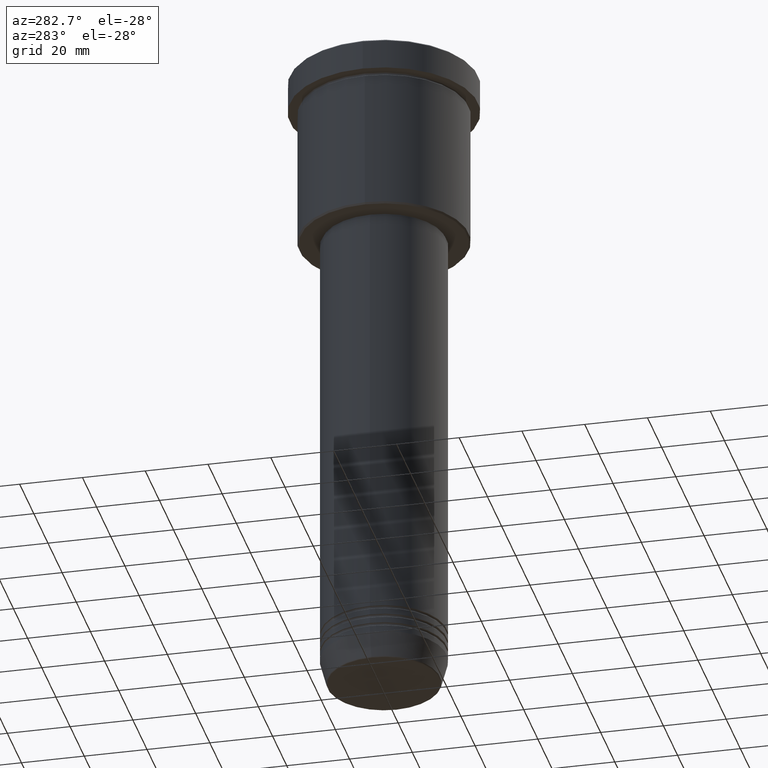
[diagram: clean part render]
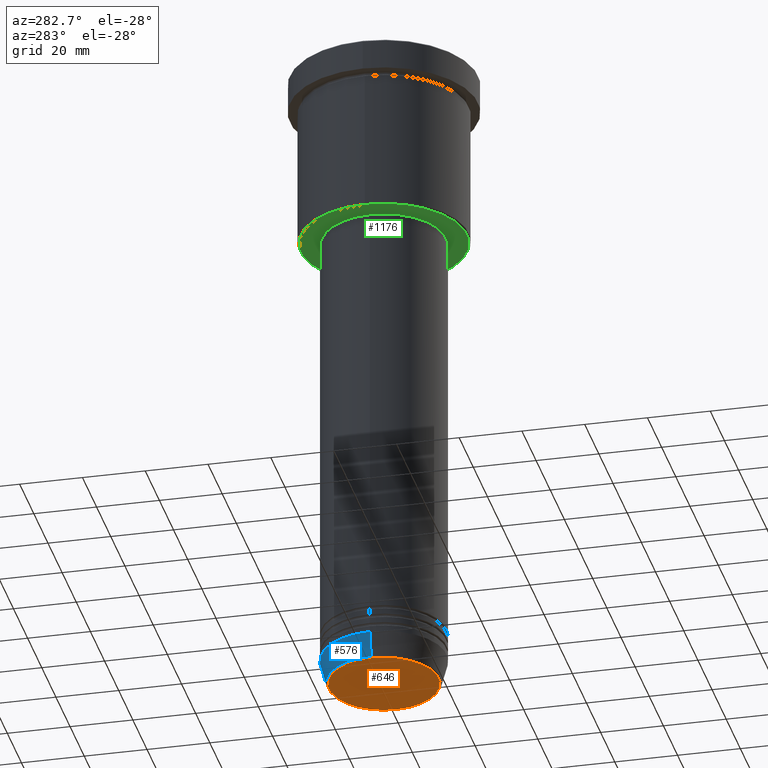
[diagram: same view with three faces highlighted in distinct colors, each labeled with its STEP entity id]
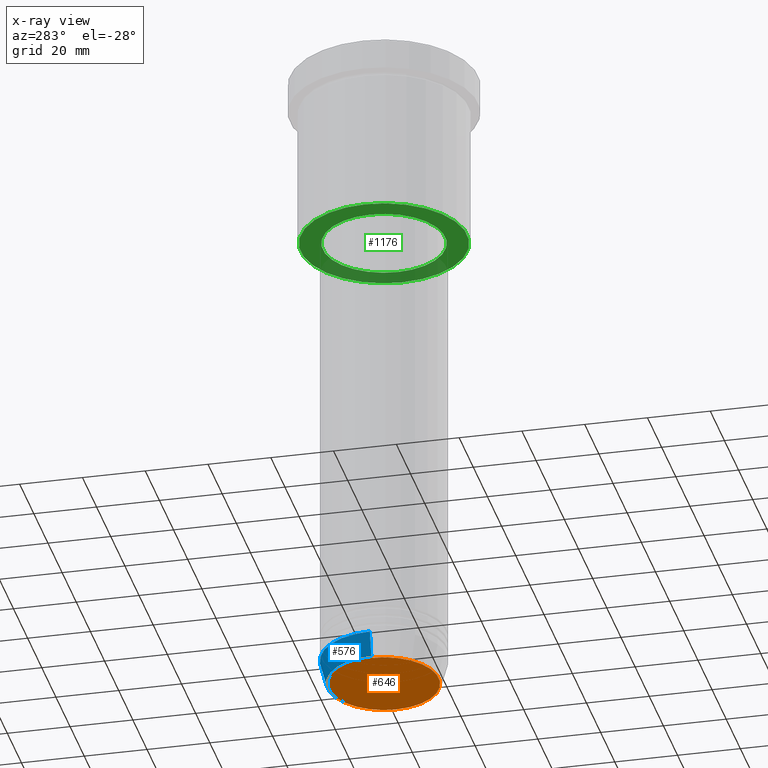
[diagram: x-ray of the same camera — body ghosted, the three highlighted faces saturated]
A machine part, auxiliary view with three faces highlighted in distinct colors.
The next image is the same camera in x-ray (body ghosted, the three faces saturated) — at least one of them is partly hidden behind the body in this view.
Their STEP definitions:

[orange] entity #646 — the highlighted planar face has unit normal (0, -0, 1).
#26 = CARTESIAN_POINT ( 'NONE',  ( 17.47274296656153325, 0.000000000000000000, -211.0000000000000284 ) ) ;
#53 = DIRECTION ( 'NONE',  ( 0.000000000000000000, 0.000000000000000000, -1.000000000000000000 ) ) ;
#115 = DIRECTION ( 'NONE',  ( 1.000000000000000000, 0.000000000000000000, 0.000000000000000000 ) ) ;
#120 = AXIS2_PLACEMENT_3D ( 'NONE', #696, #53, #429 ) ;
#253 = ORIENTED_EDGE ( 'NONE', *, *, #681, .T. ) ;
#308 = EDGE_LOOP ( 'NONE', ( #892, #253 ) ) ;
#313 = CARTESIAN_POINT ( 'NONE',  ( 0.000000000000000000, 0.000000000000000000, -211.0000000000000284 ) ) ;
#355 = CIRCLE ( 'NONE', #731, 17.47274296656153325 ) ;
#429 = DIRECTION ( 'NONE',  ( 1.000000000000000000, 0.000000000000000000, 0.000000000000000000 ) ) ;
#476 = AXIS2_PLACEMENT_3D ( 'NONE', #849, #853, #115 ) ;
#520 = PLANE ( 'NONE',  #476 ) ;
#587 = CIRCLE ( 'NONE', #120, 17.47274296656153325 ) ;
#646 = ADVANCED_FACE ( 'NONE', ( #930 ), #520, .F. ) ;
#672 = DIRECTION ( 'NONE',  ( 1.000000000000000000, 0.000000000000000000, 0.000000000000000000 ) ) ;
#681 = EDGE_CURVE ( 'NONE', #1008, #1157, #355, .T. ) ;
#696 = CARTESIAN_POINT ( 'NONE',  ( 0.000000000000000000, 0.000000000000000000, -211.0000000000000284 ) ) ;
#731 = AXIS2_PLACEMENT_3D ( 'NONE', #313, #1010, #672 ) ;
#849 = CARTESIAN_POINT ( 'NONE',  ( 0.000000000000000000, 0.000000000000000000, -211.0000000000000284 ) ) ;
#853 = DIRECTION ( 'NONE',  ( 0.000000000000000000, -0.000000000000000000, 1.000000000000000000 ) ) ;
#892 = ORIENTED_EDGE ( 'NONE', *, *, #1073, .T. ) ;
#901 = CARTESIAN_POINT ( 'NONE',  ( -17.47274296656153325, 2.169366823916867714E-15, -211.0000000000000284 ) ) ;
#930 = FACE_OUTER_BOUND ( 'NONE', #308, .T. ) ;
#1008 = VERTEX_POINT ( 'NONE', #901 ) ;
#1010 = DIRECTION ( 'NONE',  ( 0.000000000000000000, 0.000000000000000000, -1.000000000000000000 ) ) ;
#1073 = EDGE_CURVE ( 'NONE', #1157, #1008, #587, .T. ) ;
#1157 = VERTEX_POINT ( 'NONE', #26 ) ;

[blue] entity #576 — the highlighted conical surface has half-angle 15 deg.
#23 = AXIS2_PLACEMENT_3D ( 'NONE', #486, #177, #394 ) ;
#27 = EDGE_CURVE ( 'NONE', #945, #642, #483, .T. ) ;
#55 = DIRECTION ( 'NONE',  ( -0.000000000000000000, -0.000000000000000000, 1.000000000000000000 ) ) ;
#126 = CARTESIAN_POINT ( 'NONE',  ( -20.00000000000000000, 2.449293598294706513E-15, -203.0000000000000000 ) ) ;
#135 = DIRECTION ( 'NONE',  ( -0.2588190451025212391, 3.169619151431771721E-17, 0.9659258262890680902 ) ) ;
#176 = AXIS2_PLACEMENT_3D ( 'NONE', #840, #1014, #583 ) ;
#177 = DIRECTION ( 'NONE',  ( -0.000000000000000000, -0.000000000000000000, 1.000000000000000000 ) ) ;
#264 = LINE ( 'NONE', #1140, #1079 ) ;
#288 = FACE_OUTER_BOUND ( 'NONE', #634, .T. ) ;
#329 = DIRECTION ( 'NONE',  ( 0.2588190451025212391, 0.000000000000000000, 0.9659258262890680902 ) ) ;
#336 = CARTESIAN_POINT ( 'NONE',  ( 0.000000000000000000, 0.000000000000000000, -210.6294095225512706 ) ) ;
#375 = CARTESIAN_POINT ( 'NONE',  ( 20.00000000000000000, 0.000000000000000000, -203.0000000000000000 ) ) ;
#394 = DIRECTION ( 'NONE',  ( 1.000000000000000000, 0.000000000000000000, 0.000000000000000000 ) ) ;
#438 = DIRECTION ( 'NONE',  ( 1.000000000000000000, 0.000000000000000000, 0.000000000000000000 ) ) ;
#454 = CONICAL_SURFACE ( 'NONE', #23, 20.00000000000000000, 0.2617993877991499629 ) ;
#483 = LINE ( 'NONE', #717, #1016 ) ;
#486 = CARTESIAN_POINT ( 'NONE',  ( 0.000000000000000000, 0.000000000000000000, -203.0000000000000000 ) ) ;
#499 = EDGE_CURVE ( 'NONE', #697, #945, #1003, .T. ) ;
#557 = ORIENTED_EDGE ( 'NONE', *, *, #873, .F. ) ;
#576 = ADVANCED_FACE ( 'NONE', ( #288 ), #454, .T. ) ;
#583 = DIRECTION ( 'NONE',  ( 1.000000000000000000, 0.000000000000000000, 0.000000000000000000 ) ) ;
#600 = CIRCLE ( 'NONE', #176, 20.00000000000000000 ) ;
#634 = EDGE_LOOP ( 'NONE', ( #1084, #722, #933, #557 ) ) ;
#642 = VERTEX_POINT ( 'NONE', #126 ) ;
#697 = VERTEX_POINT ( 'NONE', #1107 ) ;
#717 = CARTESIAN_POINT ( 'NONE',  ( -20.00000000000000000, 2.449293598294706513E-15, -203.0000000000000000 ) ) ;
#722 = ORIENTED_EDGE ( 'NONE', *, *, #27, .T. ) ;
#832 = CARTESIAN_POINT ( 'NONE',  ( -17.95570587970605558, 2.324116685748020188E-15, -210.6294095225512706 ) ) ;
#840 = CARTESIAN_POINT ( 'NONE',  ( 0.000000000000000000, 0.000000000000000000, -203.0000000000000000 ) ) ;
#873 = EDGE_CURVE ( 'NONE', #697, #925, #264, .T. ) ;
#925 = VERTEX_POINT ( 'NONE', #375 ) ;
#933 = ORIENTED_EDGE ( 'NONE', *, *, #1085, .F. ) ;
#945 = VERTEX_POINT ( 'NONE', #832 ) ;
#1003 = CIRCLE ( 'NONE', #1061, 17.95570587970605558 ) ;
#1014 = DIRECTION ( 'NONE',  ( -0.000000000000000000, -0.000000000000000000, 1.000000000000000000 ) ) ;
#1016 = VECTOR ( 'NONE', #135, 1000.000000000000114 ) ;
#1061 = AXIS2_PLACEMENT_3D ( 'NONE', #336, #55, #438 ) ;
#1079 = VECTOR ( 'NONE', #329, 1000.000000000000114 ) ;
#1084 = ORIENTED_EDGE ( 'NONE', *, *, #499, .T. ) ;
#1085 = EDGE_CURVE ( 'NONE', #925, #642, #600, .T. ) ;
#1107 = CARTESIAN_POINT ( 'NONE',  ( 17.95570587970605558, 0.000000000000000000, -210.6294095225512706 ) ) ;
#1140 = CARTESIAN_POINT ( 'NONE',  ( 20.00000000000000000, 0.000000000000000000, -203.0000000000000000 ) ) ;

[green] entity #1176 — the highlighted planar face has unit normal (0, 0, -1).
#63 = AXIS2_PLACEMENT_3D ( 'NONE', #800, #263, #461 ) ;
#73 = CARTESIAN_POINT ( 'NONE',  ( 19.50000000000000000, 0.000000000000000000, -55.99999999999999289 ) ) ;
#214 = AXIS2_PLACEMENT_3D ( 'NONE', #1114, #665, #1127 ) ;
#215 = AXIS2_PLACEMENT_3D ( 'NONE', #1030, #666, #302 ) ;
#258 = CIRCLE ( 'NONE', #953, 26.49999999999999645 ) ;
#263 = DIRECTION ( 'NONE',  ( 0.000000000000000000, 0.000000000000000000, -1.000000000000000000 ) ) ;
#302 = DIRECTION ( 'NONE',  ( 1.000000000000000000, 0.000000000000000000, 0.000000000000000000 ) ) ;
#326 = ORIENTED_EDGE ( 'NONE', *, *, #608, .T. ) ;
#362 = DIRECTION ( 'NONE',  ( 0.000000000000000000, 0.000000000000000000, -1.000000000000000000 ) ) ;
#365 = FACE_OUTER_BOUND ( 'NONE', #1117, .T. ) ;
#377 = AXIS2_PLACEMENT_3D ( 'NONE', #1077, #362, #1180 ) ;
#455 = EDGE_CURVE ( 'NONE', #762, #869, #913, .T. ) ;
#461 = DIRECTION ( 'NONE',  ( -1.000000000000000000, 0.000000000000000000, -0.000000000000000000 ) ) ;
#497 = VERTEX_POINT ( 'NONE', #781 ) ;
#527 = ORIENTED_EDGE ( 'NONE', *, *, #455, .T. ) ;
#540 = PLANE ( 'NONE',  #63 ) ;
#608 = EDGE_CURVE ( 'NONE', #869, #762, #838, .T. ) ;
#622 = DIRECTION ( 'NONE',  ( -1.000000000000000000, 0.000000000000000000, 0.000000000000000000 ) ) ;
#665 = DIRECTION ( 'NONE',  ( -0.000000000000000000, -0.000000000000000000, 1.000000000000000000 ) ) ;
#666 = DIRECTION ( 'NONE',  ( -0.000000000000000000, -0.000000000000000000, 1.000000000000000000 ) ) ;
#674 = VERTEX_POINT ( 'NONE', #1015 ) ;
#682 = CARTESIAN_POINT ( 'NONE',  ( 0.000000000000000000, 0.000000000000000000, -55.99999999999999289 ) ) ;
#684 = ORIENTED_EDGE ( 'NONE', *, *, #887, .T. ) ;
#727 = EDGE_CURVE ( 'NONE', #674, #497, #258, .T. ) ;
#762 = VERTEX_POINT ( 'NONE', #969 ) ;
#781 = CARTESIAN_POINT ( 'NONE',  ( -26.49999999999999645, 3.275930187719169552E-15, -55.99999999999999289 ) ) ;
#800 = CARTESIAN_POINT ( 'NONE',  ( 0.000000000000000000, 27.00000000000000355, -55.99999999999999289 ) ) ;
#838 = CIRCLE ( 'NONE', #215, 19.50000000000000000 ) ;
#869 = VERTEX_POINT ( 'NONE', #73 ) ;
#884 = FACE_BOUND ( 'NONE', #1093, .T. ) ;
#887 = EDGE_CURVE ( 'NONE', #497, #674, #1146, .T. ) ;
#913 = CIRCLE ( 'NONE', #214, 19.50000000000000000 ) ;
#953 = AXIS2_PLACEMENT_3D ( 'NONE', #682, #1051, #622 ) ;
#969 = CARTESIAN_POINT ( 'NONE',  ( -19.50000000000000000, 2.388061258337338939E-15, -55.99999999999999289 ) ) ;
#1015 = CARTESIAN_POINT ( 'NONE',  ( 26.49999999999999645, 0.000000000000000000, -55.99999999999999289 ) ) ;
#1030 = CARTESIAN_POINT ( 'NONE',  ( 0.000000000000000000, 0.000000000000000000, -55.99999999999999289 ) ) ;
#1051 = DIRECTION ( 'NONE',  ( 0.000000000000000000, 0.000000000000000000, -1.000000000000000000 ) ) ;
#1058 = ORIENTED_EDGE ( 'NONE', *, *, #727, .T. ) ;
#1077 = CARTESIAN_POINT ( 'NONE',  ( 0.000000000000000000, 0.000000000000000000, -55.99999999999999289 ) ) ;
#1093 = EDGE_LOOP ( 'NONE', ( #326, #527 ) ) ;
#1114 = CARTESIAN_POINT ( 'NONE',  ( 0.000000000000000000, 0.000000000000000000, -55.99999999999999289 ) ) ;
#1117 = EDGE_LOOP ( 'NONE', ( #1058, #684 ) ) ;
#1127 = DIRECTION ( 'NONE',  ( 1.000000000000000000, 0.000000000000000000, 0.000000000000000000 ) ) ;
#1146 = CIRCLE ( 'NONE', #377, 26.49999999999999645 ) ;
#1176 = ADVANCED_FACE ( 'NONE', ( #365, #884 ), #540, .T. ) ;
#1180 = DIRECTION ( 'NONE',  ( -1.000000000000000000, 0.000000000000000000, 0.000000000000000000 ) ) ;